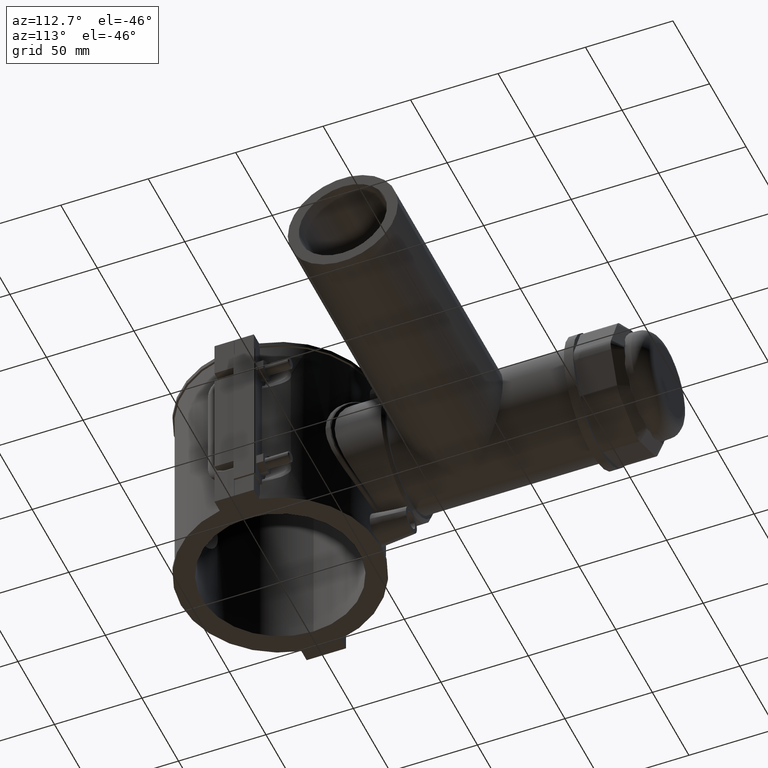
[diagram: clean part render]
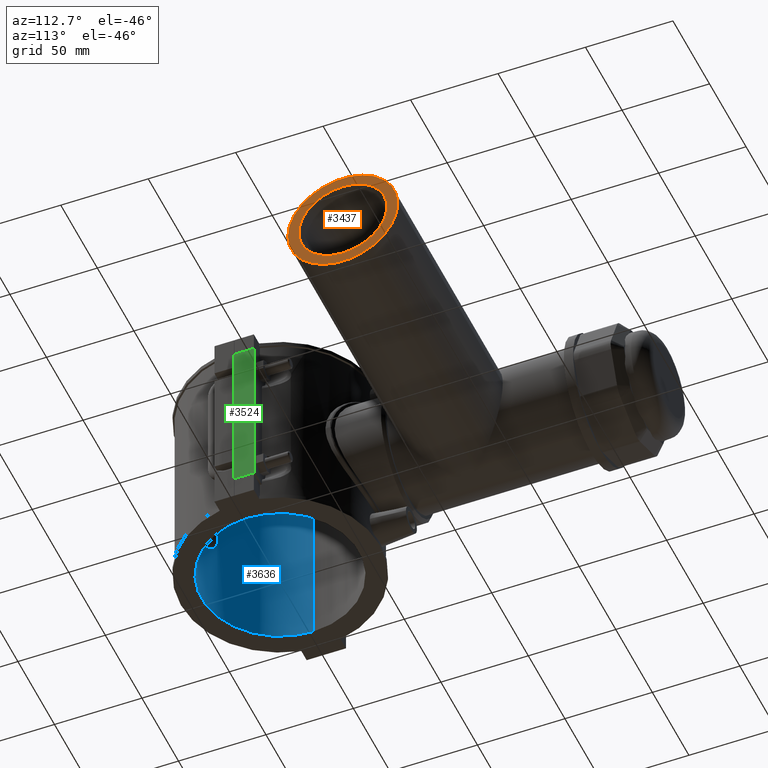
[diagram: same view with three faces highlighted in distinct colors, each labeled with its STEP entity id]
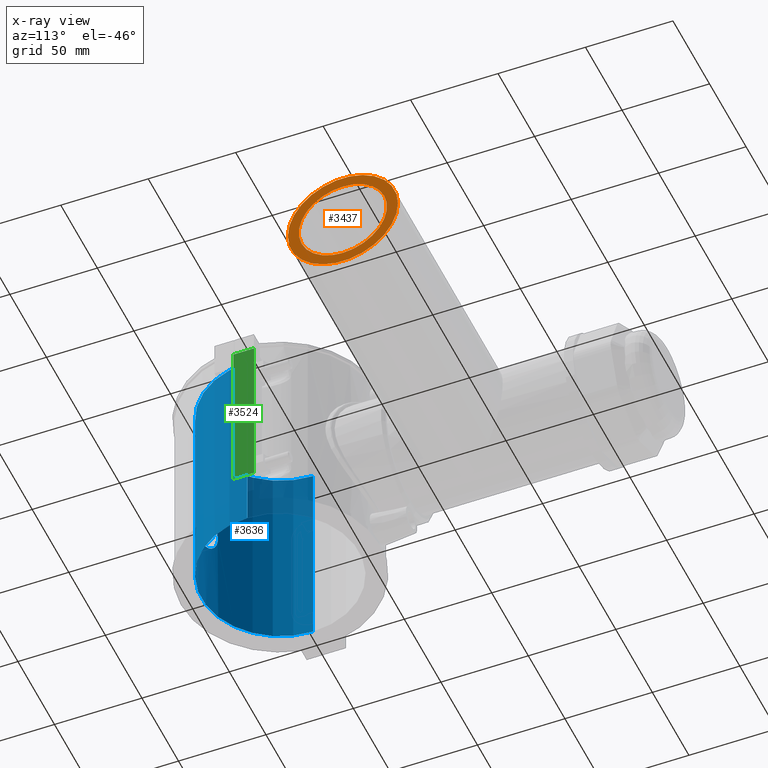
[diagram: x-ray of the same camera — body ghosted, the three highlighted faces saturated]
A machine part, auxiliary view with three faces highlighted in distinct colors.
The next image is the same camera in x-ray (body ghosted, the three faces saturated) — at least one of them is partly hidden behind the body in this view.
Their STEP definitions:

[orange] entity #3437 — the highlighted planar face has unit normal (1, 0, 0).
#655=FACE_BOUND('',#1055,.T.);
#837=FACE_OUTER_BOUND('',#1054,.T.);
#1054=EDGE_LOOP('',(#2292));
#1055=EDGE_LOOP('',(#2293));
#1316=CIRCLE('',#3652,31.5);
#1317=CIRCLE('',#3654,25.2);
#1447=VERTEX_POINT('',#5194);
#1449=VERTEX_POINT('',#5288);
#1785=EDGE_CURVE('',#1447,#1447,#1316,.T.);
#1787=EDGE_CURVE('',#1449,#1449,#1317,.T.);
#2292=ORIENTED_EDGE('',*,*,#1785,.T.);
#2293=ORIENTED_EDGE('',*,*,#1787,.F.);
#3307=PLANE('',#3655);
#3437=ADVANCED_FACE('',(#837,#655),#3307,.T.);
#3652=AXIS2_PLACEMENT_3D('',#5195,#4003,#4004);
#3654=AXIS2_PLACEMENT_3D('',#5289,#4007,#4008);
#3655=AXIS2_PLACEMENT_3D('',#5290,#4009,#4010);
#4003=DIRECTION('center_axis',(1.,0.,0.));
#4004=DIRECTION('ref_axis',(0.,0.,-1.));
#4007=DIRECTION('center_axis',(1.,0.,0.));
#4008=DIRECTION('ref_axis',(0.,0.,-1.));
#4009=DIRECTION('center_axis',(1.,0.,0.));
#4010=DIRECTION('ref_axis',(0.,0.,-1.));
#5194=CARTESIAN_POINT('',(175.,140.5,0.));
#5195=CARTESIAN_POINT('Origin',(175.,109.,0.));
#5288=CARTESIAN_POINT('',(175.,109.,-25.2));
#5289=CARTESIAN_POINT('Origin',(175.,109.,0.));
#5290=CARTESIAN_POINT('Origin',(175.,134.2,0.));

[blue] entity #3636 — the highlighted cylindrical surface (partial cylindrical patch) has radius 45 mm, axis along (0, 0, 1).
#283=LINE('',#7097,#582);
#336=LINE('',#7491,#635);
#582=VECTOR('',#4750,118.);
#635=VECTOR('',#4939,118.);
#704=FACE_BOUND('',#1303,.T.);
#713=B_SPLINE_CURVE_WITH_KNOTS('',3,(#5591,#5592,#5593,#5594,#5595,#5596,
#5597,#5598,#5599,#5600,#5601,#5602,#5603,#5604,#5605,#5606,#5607,#5608,
#5609,#5610,#5611,#5612,#5613,#5614,#5615,#5616,#5617,#5618,#5619,#5620,
#5621,#5622,#5623,#5624,#5625,#5626,#5627,#5628,#5629,#5630,#5631,#5632,
#5633,#5634,#5635,#5636,#5637,#5638,#5639,#5640,#5641,#5642,#5643,#5644,
#5645,#5646,#5647,#5648),.UNSPECIFIED.,.T.,.F.,(4,2,2,2,2,2,2,2,2,2,2,2,
2,2,2,2,2,2,2,2,2,2,2,2,2,2,2,2,4),(0.,0.298130774437552,0.596261548875103,
1.19252309775021,1.49048702667013,1.78845095559006,2.08641488450998,2.38437881342991,
2.68234274234983,2.98030667126975,3.27827060018968,3.5762345291096,4.17249607798471,
4.47062685242226,4.76875762685981,5.06688840129736,5.36501917573491,5.96128072461002,
6.25924465352994,6.55720858244987,6.85517251136979,7.15313644028972,7.45110036920964,
7.74906429812957,8.04702822704949,8.34499215596941,8.94125370484452,9.23938447928207,
9.53751525371962),.UNSPECIFIED.);
#829=CYLINDRICAL_SURFACE('',#3979,45.);
#1036=FACE_OUTER_BOUND('',#1302,.T.);
#1302=EDGE_LOOP('',(#3258,#3259,#3260,#3261));
#1303=EDGE_LOOP('',(#3262));
#1438=CIRCLE('',#3976,45.);
#1439=CIRCLE('',#3978,45.);
#1522=VERTEX_POINT('',#5590);
#1722=VERTEX_POINT('',#7094);
#1723=VERTEX_POINT('',#7096);
#1775=VERTEX_POINT('',#7488);
#1776=VERTEX_POINT('',#7490);
#1900=EDGE_CURVE('',#1522,#1522,#713,.T.);
#2178=EDGE_CURVE('',#1723,#1722,#283,.T.);
#2271=EDGE_CURVE('',#1776,#1775,#336,.T.);
#2273=EDGE_CURVE('',#1776,#1722,#1438,.T.);
#2274=EDGE_CURVE('',#1723,#1775,#1439,.T.);
#3258=ORIENTED_EDGE('',*,*,#2271,.T.);
#3259=ORIENTED_EDGE('',*,*,#2274,.F.);
#3260=ORIENTED_EDGE('',*,*,#2178,.T.);
#3261=ORIENTED_EDGE('',*,*,#2273,.F.);
#3262=ORIENTED_EDGE('',*,*,#1900,.T.);
#3636=ADVANCED_FACE('',(#1036,#704),#829,.F.);
#3976=AXIS2_PLACEMENT_3D('',#7495,#4945,#4946);
#3978=AXIS2_PLACEMENT_3D('',#7497,#4949,#4950);
#3979=AXIS2_PLACEMENT_3D('',#7498,#4951,#4952);
#4750=DIRECTION('',(0.,0.,1.));
#4939=DIRECTION('',(0.,0.,-1.));
#4945=DIRECTION('center_axis',(0.,0.,-1.));
#4946=DIRECTION('ref_axis',(-1.,0.,0.));
#4949=DIRECTION('center_axis',(0.,0.,1.));
#4950=DIRECTION('ref_axis',(-1.,0.,0.));
#4951=DIRECTION('center_axis',(0.,0.,1.));
#4952=DIRECTION('ref_axis',(-1.,0.,0.));
#5590=CARTESIAN_POINT('',(15.68,-42.1798245610387,2.77555756156289E-16));
#5591=CARTESIAN_POINT('Ctrl Pts',(15.68,-42.1798245610387,2.77555756156289E-16));
#5592=CARTESIAN_POINT('Ctrl Pts',(15.68,-42.1798245610387,0.993769248125173));
#5593=CARTESIAN_POINT('Ctrl Pts',(15.5840062611448,-42.2159243813651,2.01849568046661));
#5594=CARTESIAN_POINT('Ctrl Pts',(15.1829951016987,-42.3618009790322,4.05120176988392));
#5595=CARTESIAN_POINT('Ctrl Pts',(14.8780965708993,-42.4714239376622,5.05921591543679));
#5596=CARTESIAN_POINT('Ctrl Pts',(13.6743092749295,-42.8804342755879,7.95234733967828));
#5597=CARTESIAN_POINT('Ctrl Pts',(12.4706643468803,-43.2610623394661,9.70420431112979));
#5598=CARTESIAN_POINT('Ctrl Pts',(10.3962063745887,-43.7884410454044,11.7786622834215));
#5599=CARTESIAN_POINT('Ctrl Pts',(9.61490003473461,-43.9694011229695,12.428665076078));
#5600=CARTESIAN_POINT('Ctrl Pts',(7.91087463584725,-44.307703622236,13.5770424166243));
#5601=CARTESIAN_POINT('Ctrl Pts',(6.98815325823131,-44.4647418327408,14.075503120421));
#5602=CARTESIAN_POINT('Ctrl Pts',(5.05882727978244,-44.7253375478535,14.8782506934927));
#5603=CARTESIAN_POINT('Ctrl Pts',(4.05053588295858,-44.8289074026202,15.183175141873));
#5604=CARTESIAN_POINT('Ctrl Pts',(2.01774280473302,-44.9662817433942,15.5841060797187));
#5605=CARTESIAN_POINT('Ctrl Pts',(0.99321309639975,-45.,15.68));
#5606=CARTESIAN_POINT('Ctrl Pts',(-0.993213096399747,-45.,15.68));
#5607=CARTESIAN_POINT('Ctrl Pts',(-2.01774280473302,-44.9662817433942,15.5841060797187));
#5608=CARTESIAN_POINT('Ctrl Pts',(-4.05053588295858,-44.8289074026202,15.183175141873));
#5609=CARTESIAN_POINT('Ctrl Pts',(-5.05882727978244,-44.7253375478535,14.8782506934927));
#5610=CARTESIAN_POINT('Ctrl Pts',(-6.9881532582313,-44.4647418327408,14.075503120421));
#5611=CARTESIAN_POINT('Ctrl Pts',(-7.91087463584725,-44.307703622236,13.5770424166243));
#5612=CARTESIAN_POINT('Ctrl Pts',(-9.61490003473461,-43.9694011229695,12.428665076078));
#5613=CARTESIAN_POINT('Ctrl Pts',(-10.3962063745887,-43.7884410454044,11.7786622834215));
#5614=CARTESIAN_POINT('Ctrl Pts',(-12.4706643468803,-43.2610623394661,9.7042043111298));
#5615=CARTESIAN_POINT('Ctrl Pts',(-13.6743092749295,-42.8804342755878,7.95234733967828));
#5616=CARTESIAN_POINT('Ctrl Pts',(-14.8780965708993,-42.4714239376622,5.05921591543679));
#5617=CARTESIAN_POINT('Ctrl Pts',(-15.1829951016987,-42.3618009790322,4.05120176988392));
#5618=CARTESIAN_POINT('Ctrl Pts',(-15.5840062611448,-42.2159243813651,2.01849568046661));
#5619=CARTESIAN_POINT('Ctrl Pts',(-15.68,-42.1798245610387,0.993769248125173));
#5620=CARTESIAN_POINT('Ctrl Pts',(-15.68,-42.1798245610387,-0.993769248125173));
#5621=CARTESIAN_POINT('Ctrl Pts',(-15.5840062611448,-42.2159243813651,-2.01849568046661));
#5622=CARTESIAN_POINT('Ctrl Pts',(-15.1829951016987,-42.3618009790322,-4.05120176988392));
#5623=CARTESIAN_POINT('Ctrl Pts',(-14.8780965708993,-42.4714239376622,-5.05921591543679));
#5624=CARTESIAN_POINT('Ctrl Pts',(-13.6743092749295,-42.8804342755878,-7.95234733967828));
#5625=CARTESIAN_POINT('Ctrl Pts',(-12.4706643468803,-43.2610623394661,-9.70420431112979));
#5626=CARTESIAN_POINT('Ctrl Pts',(-10.3962063745887,-43.7884410454044,-11.7786622834215));
#5627=CARTESIAN_POINT('Ctrl Pts',(-9.61490003473461,-43.9694011229695,-12.428665076078));
#5628=CARTESIAN_POINT('Ctrl Pts',(-7.91087463584725,-44.307703622236,-13.5770424166243));
#5629=CARTESIAN_POINT('Ctrl Pts',(-6.9881532582313,-44.4647418327408,-14.075503120421));
#5630=CARTESIAN_POINT('Ctrl Pts',(-5.05882727978244,-44.7253375478535,-14.8782506934927));
#5631=CARTESIAN_POINT('Ctrl Pts',(-4.05053588295858,-44.8289074026202,-15.183175141873));
#5632=CARTESIAN_POINT('Ctrl Pts',(-2.01774280473303,-44.9662817433942,-15.5841060797187));
#5633=CARTESIAN_POINT('Ctrl Pts',(-0.993213096399753,-45.,-15.68));
#5634=CARTESIAN_POINT('Ctrl Pts',(0.993213096399747,-45.,-15.68));
#5635=CARTESIAN_POINT('Ctrl Pts',(2.01774280473302,-44.9662817433942,-15.5841060797187));
#5636=CARTESIAN_POINT('Ctrl Pts',(4.05053588295858,-44.8289074026202,-15.183175141873));
#5637=CARTESIAN_POINT('Ctrl Pts',(5.05882727978244,-44.7253375478535,-14.8782506934927));
#5638=CARTESIAN_POINT('Ctrl Pts',(6.9881532582313,-44.4647418327408,-14.075503120421));
#5639=CARTESIAN_POINT('Ctrl Pts',(7.91087463584724,-44.307703622236,-13.5770424166243));
#5640=CARTESIAN_POINT('Ctrl Pts',(9.6149000347346,-43.9694011229695,-12.428665076078));
#5641=CARTESIAN_POINT('Ctrl Pts',(10.3962063745887,-43.7884410454044,-11.7786622834215));
#5642=CARTESIAN_POINT('Ctrl Pts',(12.4706643468803,-43.2610623394661,-9.7042043111298));
#5643=CARTESIAN_POINT('Ctrl Pts',(13.6743092749295,-42.8804342755879,-7.95234733967828));
#5644=CARTESIAN_POINT('Ctrl Pts',(14.8780965708993,-42.4714239376622,-5.0592159154368));
#5645=CARTESIAN_POINT('Ctrl Pts',(15.1829951016986,-42.3618009790322,-4.05120176988393));
#5646=CARTESIAN_POINT('Ctrl Pts',(15.5840062611448,-42.2159243813651,-2.01849568046661));
#5647=CARTESIAN_POINT('Ctrl Pts',(15.68,-42.1798245610387,-0.993769248125175));
#5648=CARTESIAN_POINT('Ctrl Pts',(15.68,-42.1798245610387,2.77555756156289E-16));
#7094=CARTESIAN_POINT('',(-44.9999722222136,-0.0500000000000078,59.));
#7096=CARTESIAN_POINT('',(-44.9999722222136,-0.0500000000000078,-59.));
#7097=CARTESIAN_POINT('',(-44.9999722222136,-0.0500000000000078,0.));
#7488=CARTESIAN_POINT('',(44.9999722222136,-0.0500000000000078,-59.));
#7490=CARTESIAN_POINT('',(44.9999722222136,-0.0500000000000078,59.));
#7491=CARTESIAN_POINT('',(44.9999722222136,-0.0500000000000078,0.));
#7495=CARTESIAN_POINT('Origin',(0.,0.,59.));
#7497=CARTESIAN_POINT('Origin',(0.,0.,-59.));
#7498=CARTESIAN_POINT('Origin',(0.,0.,0.));

[green] entity #3524 — the highlighted planar face has unit normal (1, 0, 0).
#198=LINE('',#6573,#497);
#214=LINE('',#6644,#513);
#217=LINE('',#6650,#516);
#218=LINE('',#6651,#517);
#497=VECTOR('',#4465,94.4);
#513=VECTOR('',#4491,11.7000000000001);
#516=VECTOR('',#4496,11.7000000000001);
#517=VECTOR('',#4497,94.4);
#924=FACE_OUTER_BOUND('',#1162,.T.);
#1162=EDGE_LOOP('',(#2749,#2750,#2751,#2752));
#1629=VERTEX_POINT('',#6570);
#1630=VERTEX_POINT('',#6572);
#1648=VERTEX_POINT('',#6643);
#1650=VERTEX_POINT('',#6649);
#2036=EDGE_CURVE('',#1629,#1630,#198,.T.);
#2059=EDGE_CURVE('',#1630,#1648,#214,.T.);
#2062=EDGE_CURVE('',#1650,#1629,#217,.T.);
#2063=EDGE_CURVE('',#1648,#1650,#218,.T.);
#2749=ORIENTED_EDGE('',*,*,#2036,.F.);
#2750=ORIENTED_EDGE('',*,*,#2062,.F.);
#2751=ORIENTED_EDGE('',*,*,#2063,.F.);
#2752=ORIENTED_EDGE('',*,*,#2059,.F.);
#3358=PLANE('',#3811);
#3524=ADVANCED_FACE('',(#924),#3358,.T.);
#3811=AXIS2_PLACEMENT_3D('',#6648,#4494,#4495);
#4465=DIRECTION('',(0.,0.,-1.));
#4491=DIRECTION('',(0.,-1.,0.));
#4494=DIRECTION('center_axis',(1.,0.,0.));
#4495=DIRECTION('ref_axis',(0.,1.,0.));
#4496=DIRECTION('',(0.,1.,0.));
#4497=DIRECTION('',(0.,0.,1.));
#6570=CARTESIAN_POINT('',(64.,11.7500000000001,47.2));
#6572=CARTESIAN_POINT('',(64.,11.7500000000001,-47.2));
#6573=CARTESIAN_POINT('',(64.,11.7500000000001,0.));
#6643=CARTESIAN_POINT('',(64.,0.0500000000000078,-47.2));
#6644=CARTESIAN_POINT('',(64.,0.0500000000000078,-47.2));
#6648=CARTESIAN_POINT('Origin',(64.,0.0500000000000081,0.));
#6649=CARTESIAN_POINT('',(64.,0.0500000000000078,47.2));
#6650=CARTESIAN_POINT('',(64.,0.0500000000000078,47.2));
#6651=CARTESIAN_POINT('',(64.,0.0500000000000081,0.));